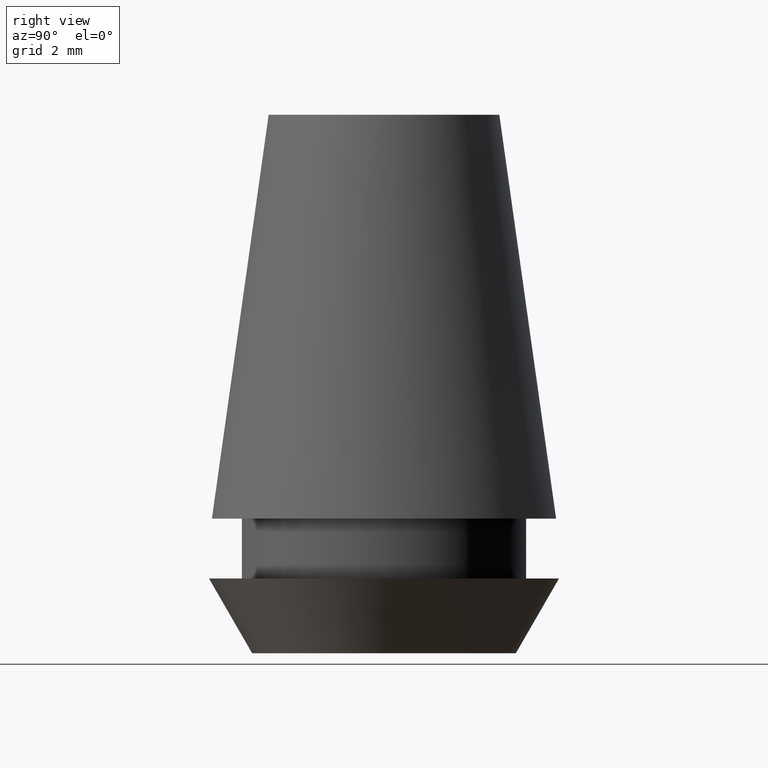
[diagram: clean part render]
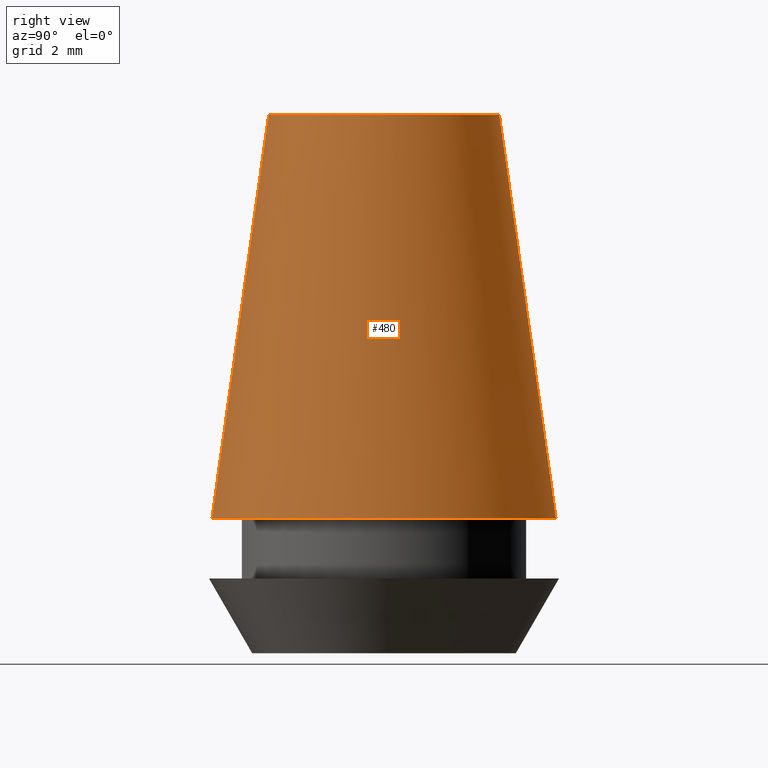
[diagram: same view with one face highlighted and labeled with its STEP entity id]
A machine part, right view. The second image highlights one B-rep face of the part: STEP entity #480.
In plain terms, the highlighted conical surface has half-angle 8 deg.
Its self-contained STEP definition (entity closure, byte-faithful):
#170=CARTESIAN_POINT('',(0.E0,1.285266815705E-14,-1.35E1));
#171=DIRECTION('',(0.E0,0.E0,1.E0));
#172=DIRECTION('',(0.E0,-1.E0,0.E0));
#173=AXIS2_PLACEMENT_3D('',#170,#171,#172);
#202=DIRECTION('',(0.E0,1.391731009601E-1,-9.902680687416E-1));
#203=VECTOR('',#202,1.363267222900E1);
#204=CARTESIAN_POINT('',(0.E0,3.855672233982E0,0.E0));
#205=LINE('',#204,#203);
#209=DIRECTION('',(0.E0,-1.391731009601E-1,-9.902680687416E-1));
#210=VECTOR('',#209,1.363267222900E1);
#211=CARTESIAN_POINT('',(0.E0,-3.855672233982E0,0.E0));
#212=LINE('',#211,#210);
#224=CARTESIAN_POINT('',(0.E0,1.285266815705E-14,2.486899575160E-14));
#225=DIRECTION('',(0.E0,0.E0,-1.E0));
#226=DIRECTION('',(0.E0,1.E0,0.E0));
#227=AXIS2_PLACEMENT_3D('',#224,#225,#226);
#280=CARTESIAN_POINT('',(0.E0,-5.752973502464E0,-1.35E1));
#281=CARTESIAN_POINT('',(0.E0,5.752973502464E0,-1.35E1));
#282=VERTEX_POINT('',#280);
#283=VERTEX_POINT('',#281);
#284=CARTESIAN_POINT('',(0.E0,3.855672233982E0,0.E0));
#285=VERTEX_POINT('',#284);
#286=CARTESIAN_POINT('',(0.E0,-3.855672233982E0,0.E0));
#287=VERTEX_POINT('',#286);
#466=CARTESIAN_POINT('',(0.E0,1.285266815705E-14,-6.75E0));
#467=DIRECTION('',(0.E0,0.E0,-1.E0));
#468=DIRECTION('',(0.E0,-1.E0,0.E0));
#469=AXIS2_PLACEMENT_3D('',#466,#467,#468);
#470=CONICAL_SURFACE('',#469,4.804322868223E0,8.E0);
#472=ORIENTED_EDGE('',*,*,#471,.T.);
#473=ORIENTED_EDGE('',*,*,#455,.F.);
#475=ORIENTED_EDGE('',*,*,#474,.F.);
#477=ORIENTED_EDGE('',*,*,#476,.F.);
#478=EDGE_LOOP('',(#472,#473,#475,#477));
#479=FACE_OUTER_BOUND('',#478,.F.);
#174=CIRCLE('',#173,5.752973502464E0);
#228=CIRCLE('',#227,3.855672233982E0);
#455=EDGE_CURVE('',#282,#283,#174,.T.);
#471=EDGE_CURVE('',#285,#283,#205,.T.);
#474=EDGE_CURVE('',#287,#282,#212,.T.);
#476=EDGE_CURVE('',#285,#287,#228,.T.);
#480=ADVANCED_FACE('',(#479),#470,.T.);